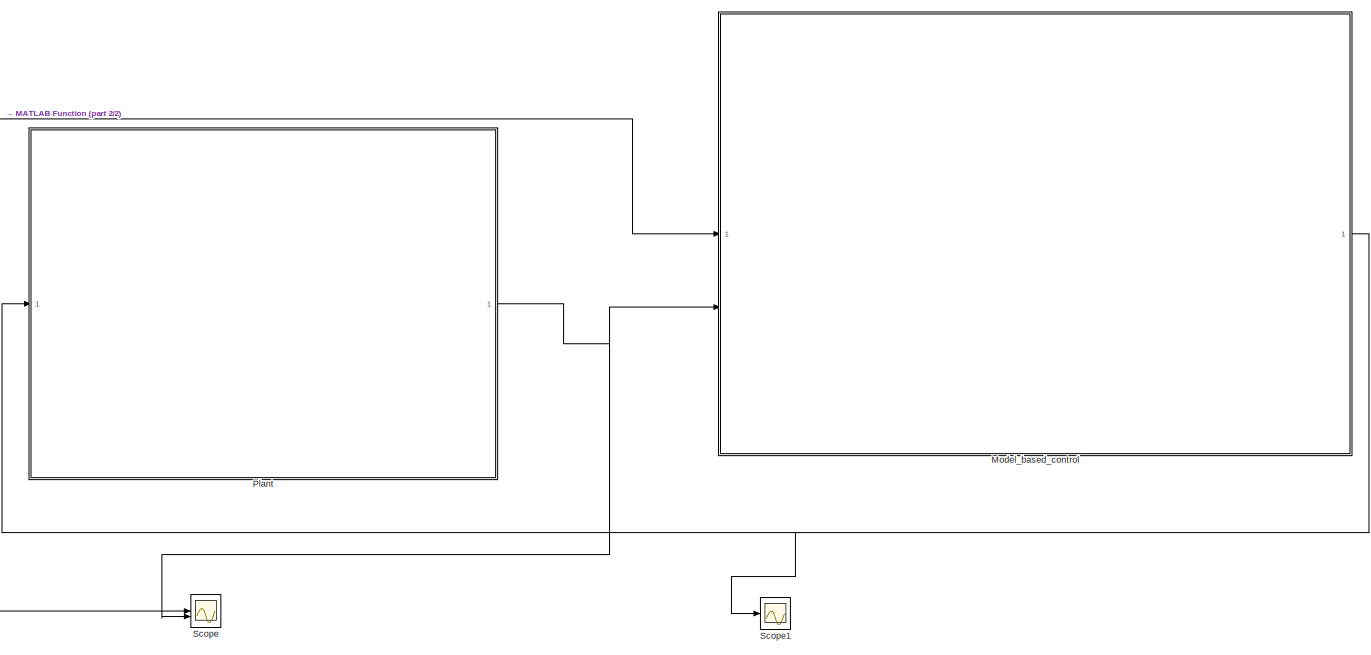
[diagram: root canvas - part 1/2, center side, full height]
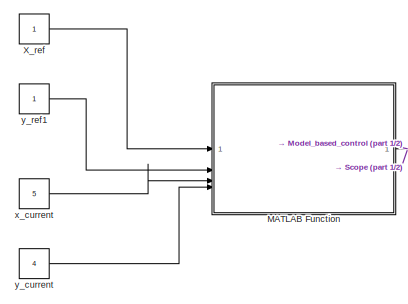
[diagram: root canvas - part 2/2, middle left region]
MODEL slx_685710e417e6
KIND model
CONFIG AbsTol = auto
CONFIG EnableMultiTasking = off
CONFIG FixedStep = auto
CONFIG MaxStep = auto
CONFIG MinStep = auto
CONFIG RelTol = 1e-3
CONFIG SampleTimeConstraint = Unconstrained
CONFIG SolverName = VariableStepAuto
CONFIG StartTime = 0.0
CONFIG StopTime = 10
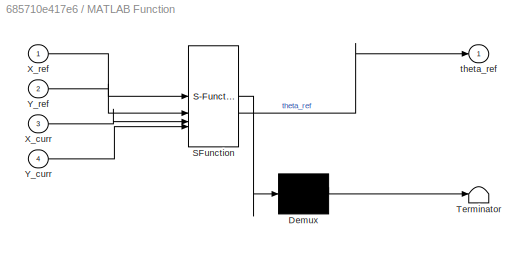
BLOCK [SubSystem] MATLAB Function
  ErrorFcn = Stateflow.Translate.translate
  PermitHierarchicalResolution = ExplicitOnly
  SFBlockType = MATLAB Function
  TreatAsAtomicUnit = on
BLOCK [Demux] MATLAB Function/ Demux 
  Outputs = 1
BLOCK [S-Function] MATLAB Function/ SFunction 
  EnableBusSupport = on
  FunctionName = sf_sfun
  PortCounts = [4 2]
  SFcnIsStateOwnerBlock = off
  SFunctionDeploymentMode = off
  Tag = Stateflow S-Function 2
BLOCK [Terminator] MATLAB Function/ Terminator 
BLOCK [Inport] MATLAB Function/X_curr
  Port = 3
BLOCK [Inport] MATLAB Function/X_ref
BLOCK [Inport] MATLAB Function/Y_curr
  Port = 4
BLOCK [Inport] MATLAB Function/Y_ref
  Port = 2
BLOCK [Outport] MATLAB Function/theta_ref
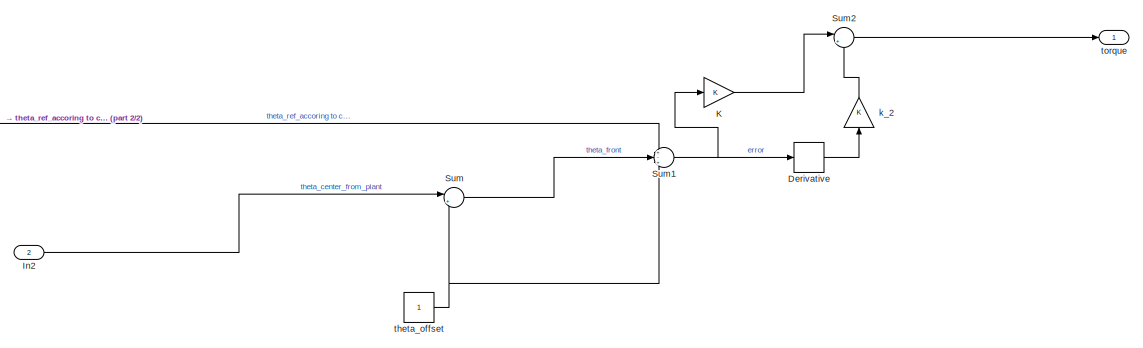
[diagram: Model_based_control - part 1/2, right side, full height]
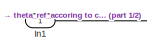
[diagram: Model_based_control - part 2/2, middle left region]
BLOCK [SubSystem] Model_based_control
BLOCK [Derivative] Model_based_control/Derivative
BLOCK [Inport] Model_based_control/In1
BLOCK [Inport] Model_based_control/In2
  Port = 2
BLOCK [Gain] Model_based_control/K
BLOCK [Sum] Model_based_control/Sum
  Inputs = |++
BLOCK [Sum] Model_based_control/Sum1
  Inputs = +-+
BLOCK [Sum] Model_based_control/Sum2
  Inputs = |++
BLOCK [Gain] Model_based_control/k_2
  NameLocation = right
BLOCK [Constant] Model_based_control/theta_offset
BLOCK [Outport] Model_based_control/torque
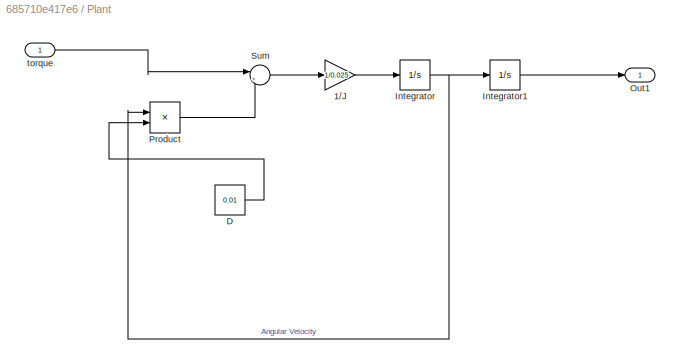
BLOCK [SubSystem] Plant
BLOCK [Gain] Plant/1//J
  Gain = 1/0.025
BLOCK [Constant] Plant/D
  Value = 0.01
BLOCK [Integrator] Plant/Integrator
BLOCK [Integrator] Plant/Integrator1
BLOCK [Outport] Plant/Out1
BLOCK [Product] Plant/Product
BLOCK [Sum] Plant/Sum
  Inputs = |+-
BLOCK [Inport] Plant/torque
BLOCK [Scope] Scope
  Floating = off
  NumInputPorts = 2
  ScopeSpecificationString = Simulink.scopes.TimeScopeBlockCfg('CurrentConfiguration', extmgr.ConfigurationSet(extmgr.Configuration('Core','General UI',true),extmgr.Configuration('Core','Source UI',true),extmgr.Configuration('Sources','WiredSimulink',true),extmgr.Configuration('Visuals','Time Domain',true,'SerializedDisplays',{struct('MinYLimReal','-2.81035','MaxYLimReal','0.31226','YLabelReal','','MinYLimMag','0.00000','MaxY...<+1472ch>
BLOCK [Scope] Scope1
  Floating = off
  NumInputPorts = 1
  ScopeSpecificationString = Simulink.scopes.TimeScopeBlockCfg('CurrentConfiguration', extmgr.ConfigurationSet(extmgr.Configuration('Core','General UI',true),extmgr.Configuration('Core','Source UI',true),extmgr.Configuration('Sources','WiredSimulink',true,'DataLoggingVariableName','ScopeData1'),extmgr.Configuration('Visuals','Time Domain',true,'SerializedDisplays',{struct('MinYLimReal','-2.81562','MaxYLimReal','0.35969','YLab...<+1499ch>
BLOCK [Constant] X_ref
BLOCK [Constant] x_current
  Value = 5
BLOCK [Constant] y_current 
  Value = 4
BLOCK [Constant] y_ref1
NET MATLAB Function:1 -> Model_based_control:1, Scope:1
LINE Model_based_control/Derivative:1 -> Model_based_control/k_2:1
LINE Model_based_control/In1:1 -> Model_based_control/Sum1:1
LINE Model_based_control/In2:1 -> Model_based_control/Sum:1
LINE Model_based_control/K:1 -> Model_based_control/Sum2:1
NET Model_based_control/Sum1:1 -> Model_based_control/Derivative:1, Model_based_control/K:1
LINE Model_based_control/Sum2:1 -> Model_based_control/torque:1
LINE Model_based_control/Sum:1 -> Model_based_control/Sum1:2
LINE Model_based_control/k_2:1 -> Model_based_control/Sum2:2
NET Model_based_control/theta_offset:1 -> Model_based_control/Sum1:3, Model_based_control/Sum:2
NET Model_based_control:1 -> Plant:1, Scope1:1
LINE Plant/1//J:1 -> Plant/Integrator:1
LINE Plant/D:1 -> Plant/Product:2
LINE Plant/Integrator1:1 -> Plant/Out1:1
NET Plant/Integrator:1 -> Plant/Integrator1:1, Plant/Product:1
LINE Plant/Product:1 -> Plant/Sum:2
LINE Plant/Sum:1 -> Plant/1//J:1
LINE Plant/torque:1 -> Plant/Sum:1
NET Plant:1 -> Model_based_control:2, Scope:2
LINE X_ref:1 -> MATLAB Function:1
LINE x_current:1 -> MATLAB Function:3
LINE y_current :1 -> MATLAB Function:4
LINE y_ref1:1 -> MATLAB Function:2
note: NET lines group one-source signal fan-out (src -> all destinations, sorted); 1:1 wires keep LINE
CHART MATLAB Function states=1 transitions=1
  STATE_LABEL 'eML_blk_kernel()'
  STATE_LABEL 'SCRIPT:\nfunction theta_ref = compute_theta_ref(X_ref,Y_ref,X_curr,Y_curr)\n% returns angle from current position to reference\ntheta_ref = atan2(Y_ref - Y_curr, X_ref - X_curr);\nend\n'
CHART  states=0 transitions=0
